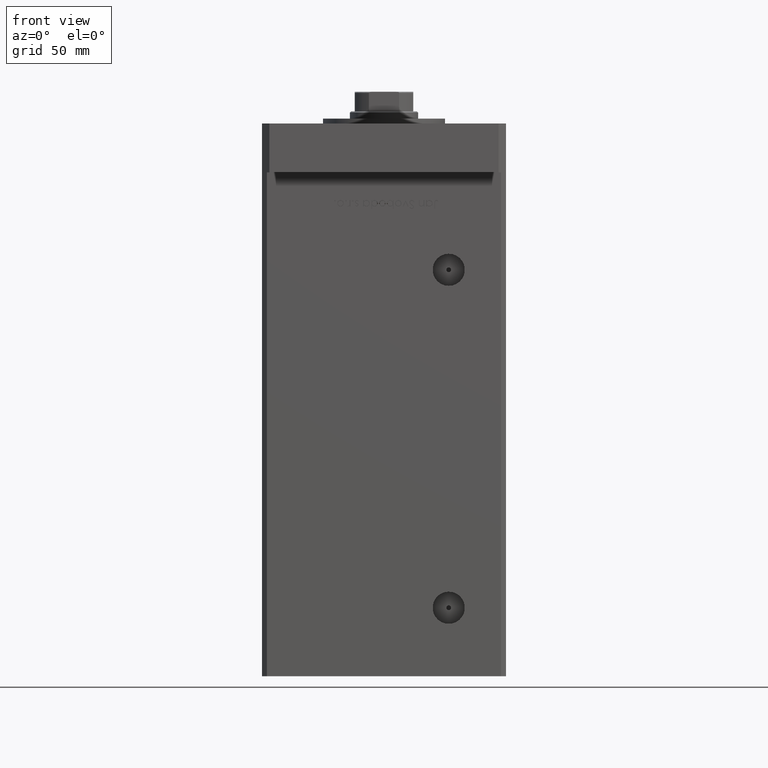
[diagram: clean part render]
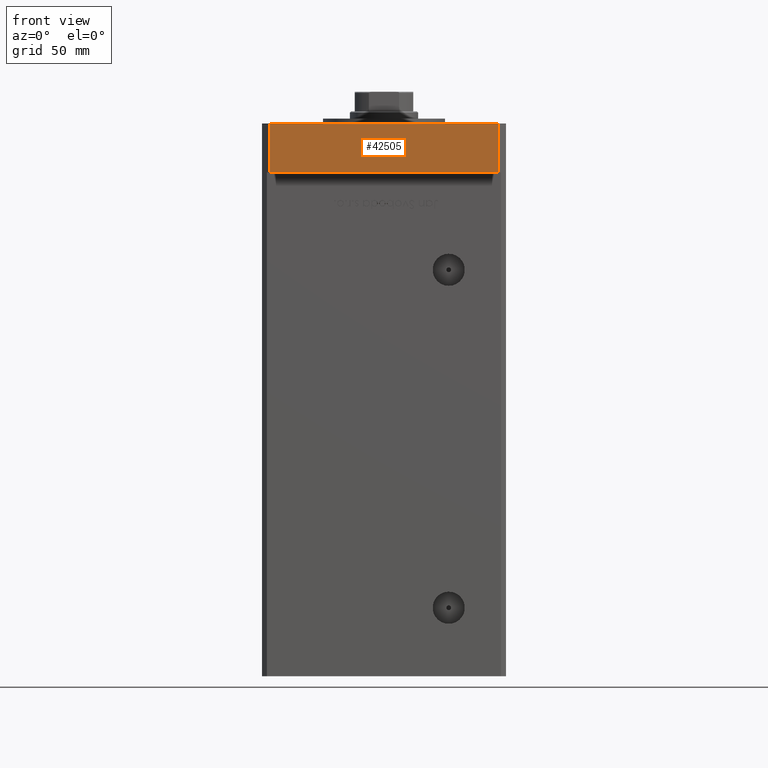
[diagram: same view with one face highlighted and labeled with its STEP entity id]
A machine part, front view. The second image highlights one B-rep face of the part: STEP entity #42505.
In plain terms, the highlighted planar face has unit normal (-0, 1, 0).
Its self-contained STEP definition (entity closure, byte-faithful):
#256 = ORIENTED_EDGE ( 'NONE', *, *, #16076, .F. ) ;
#2572 = CARTESIAN_POINT ( 'NONE',  ( -47.00000000000000000, -75.00000000000000000, 20.00000000000000000 ) ) ;
#4001 = VERTEX_POINT ( 'NONE', #6223 ) ;
#4149 = CARTESIAN_POINT ( 'NONE',  ( -47.00000000000000000, -75.00000000000000000, 0.000000000000000000 ) ) ;
#4747 = VECTOR ( 'NONE', #21947, 1000.000000000000000 ) ;
#6223 = CARTESIAN_POINT ( 'NONE',  ( -47.00000000000000000, -75.00000000000000000, 20.00000000000000000 ) ) ;
#6959 = LINE ( 'NONE', #2572, #35512 ) ;
#7821 = DIRECTION ( 'NONE',  ( -1.181088324069315250E-15, 1.000000000000000000, 0.000000000000000000 ) ) ;
#9021 = DIRECTION ( 'NONE',  ( -0.000000000000000000, -0.000000000000000000, -1.000000000000000000 ) ) ;
#10634 = VECTOR ( 'NONE', #9021, 1000.000000000000000 ) ;
#11100 = ORIENTED_EDGE ( 'NONE', *, *, #42818, .F. ) ;
#16076 = EDGE_CURVE ( 'NONE', #28244, #42644, #20505, .T. ) ;
#17084 = CARTESIAN_POINT ( 'NONE',  ( 47.00000000000001421, -74.99999999999988631, 0.000000000000000000 ) ) ;
#18114 = CARTESIAN_POINT ( 'NONE',  ( -47.00000000000000000, -75.00000000000000000, 20.00000000000000000 ) ) ;
#18763 = VECTOR ( 'NONE', #20805, 1000.000000000000000 ) ;
#19572 = CARTESIAN_POINT ( 'NONE',  ( -47.00000000000000000, -75.00000000000000000, 0.000000000000000000 ) ) ;
#20013 = LINE ( 'NONE', #4149, #18763 ) ;
#20505 = LINE ( 'NONE', #45821, #10634 ) ;
#20805 = DIRECTION ( 'NONE',  ( 1.000000000000000000, 1.181088324069315250E-15, 0.000000000000000000 ) ) ;
#21947 = DIRECTION ( 'NONE',  ( -0.000000000000000000, -0.000000000000000000, -1.000000000000000000 ) ) ;
#27415 = EDGE_CURVE ( 'NONE', #4001, #42515, #39078, .T. ) ;
#28244 = VERTEX_POINT ( 'NONE', #44930 ) ;
#31753 = DIRECTION ( 'NONE',  ( 1.000000000000000000, 1.181088324069315250E-15, 0.000000000000000000 ) ) ;
#31819 = DIRECTION ( 'NONE',  ( -1.000000000000000000, -1.181088324069315250E-15, 0.000000000000000000 ) ) ;
#35387 = EDGE_CURVE ( 'NONE', #42515, #42644, #20013, .T. ) ;
#35512 = VECTOR ( 'NONE', #31753, 1000.000000000000000 ) ;
#36432 = EDGE_LOOP ( 'NONE', ( #52939, #256, #11100, #36562 ) ) ;
#36562 = ORIENTED_EDGE ( 'NONE', *, *, #27415, .T. ) ;
#39078 = LINE ( 'NONE', #18114, #4747 ) ;
#40276 = PLANE ( 'NONE',  #52925 ) ;
#42505 = ADVANCED_FACE ( 'NONE', ( #53354 ), #40276, .F. ) ;
#42515 = VERTEX_POINT ( 'NONE', #19572 ) ;
#42644 = VERTEX_POINT ( 'NONE', #17084 ) ;
#42818 = EDGE_CURVE ( 'NONE', #4001, #28244, #6959, .T. ) ;
#44930 = CARTESIAN_POINT ( 'NONE',  ( 47.00000000000001421, -74.99999999999988631, 20.00000000000000000 ) ) ;
#45821 = CARTESIAN_POINT ( 'NONE',  ( 47.00000000000001421, -74.99999999999988631, 20.00000000000000000 ) ) ;
#52554 = CARTESIAN_POINT ( 'NONE',  ( -47.00000000000000000, -75.00000000000000000, 20.00000000000000000 ) ) ;
#52925 = AXIS2_PLACEMENT_3D ( 'NONE', #52554, #7821, #31819 ) ;
#52939 = ORIENTED_EDGE ( 'NONE', *, *, #35387, .T. ) ;
#53354 = FACE_OUTER_BOUND ( 'NONE', #36432, .T. ) ;